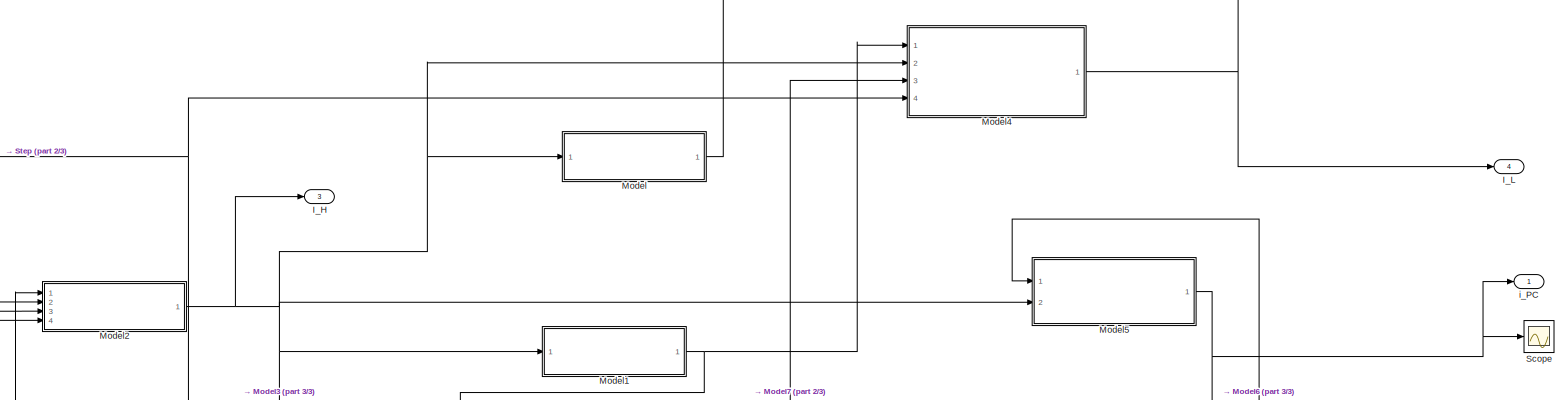
[diagram: root canvas - part 1/3, full width, middle band]
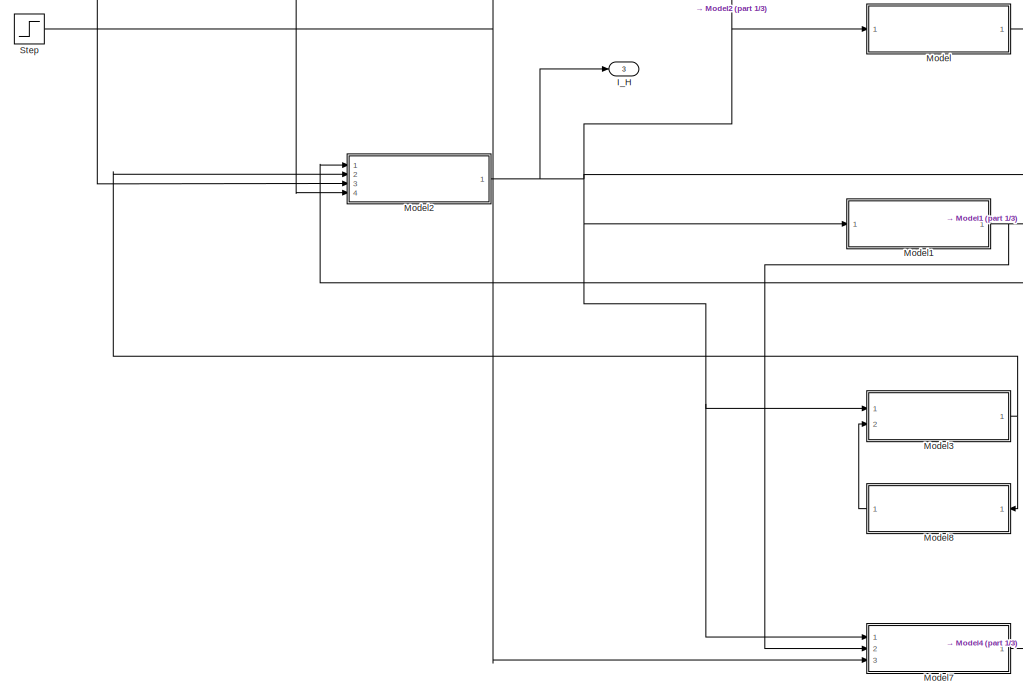
[diagram: root canvas - part 2/3, middle left region]
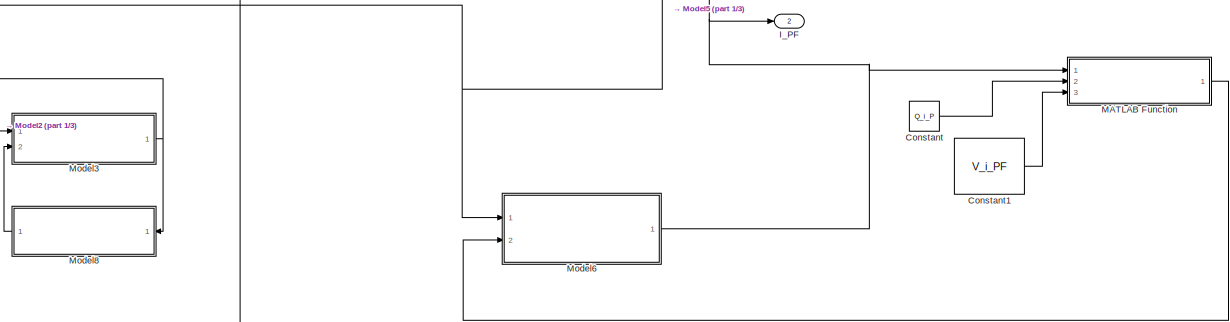
[diagram: root canvas - part 3/3, bottom right region]
MODEL slx_4ff3f8dcc8bc
KIND model
CONFIG AbsTol = auto
CONFIG EnableMultiTasking = off
CONFIG FixedStep = auto
CONFIG MaxStep = auto
CONFIG MinStep = auto
CONFIG RelTol = 1e-3
CONFIG SampleTimeConstraint = Unconstrained
CONFIG Solver = VariableStepAuto
CONFIG SolverName = VariableStepAuto
CONFIG StartTime = 0.0
CONFIG StopTime = 100.0
BLOCK [Constant] Constant
  Value = Q_i_P
BLOCK [Constant] Constant1
  Value = V_i_PF
BLOCK [Outport] I_H
  IconDisplay = Port number
  OutMin = 0
  Port = 3
BLOCK [Outport] I_L
  IconDisplay = Port number
  Port = 4
BLOCK [Outport] I_PF
  IconDisplay = Port number
  OutMin = 0
  Port = 2
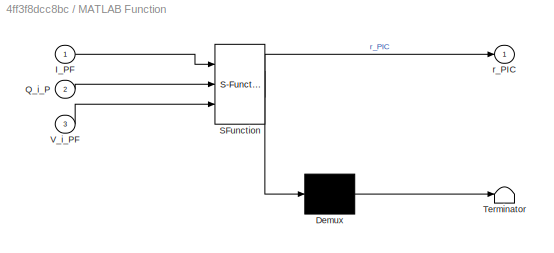
BLOCK [SubSystem] MATLAB Function
  ErrorFcn = Stateflow.Translate.translate
  PermitHierarchicalResolution = ExplicitOnly
  Ports = [3, 1]
  RequestExecContextInheritance = off
  SFBlockType = MATLAB Function
  TreatAsAtomicUnit = on
BLOCK [Demux] MATLAB Function/ Demux 
  Outputs = 1
  Ports = [1, 1]
BLOCK [S-Function] MATLAB Function/ SFunction 
  EnableBusSupport = on
  FunctionName = sf_sfun
  PortCounts = [3 2]
  Ports = [3, 2]
  SFcnIsStateOwnerBlock = off
  SFunctionDeploymentMode = off
  Tag = Stateflow S-Function Insulin_Subsystem 2
BLOCK [Terminator] MATLAB Function/ Terminator 
BLOCK [Inport] MATLAB Function/I_PF
  IconDisplay = Port number
BLOCK [Inport] MATLAB Function/Q_i_P
  IconDisplay = Port number
  Port = 2
BLOCK [Inport] MATLAB Function/V_i_PF
  IconDisplay = Port number
  Port = 3
BLOCK [Outport] MATLAB Function/r_PIC
  IconDisplay = Port number
BLOCK [ModelReference] Model
  ModelNameDialog = Brain_Insulin32
  ModelReferenceVersion = 1.3
  Ports = [1, 1]
BLOCK [ModelReference] Model1
  ModelNameDialog = Gastro_Insulin34
  ModelReferenceVersion = 1.3
  Ports = [1, 1]
BLOCK [ModelReference] Model2
  ModelNameDialog = Heart_Insulin33
  ModelReferenceVersion = 1.6
  Ports = [4, 1]
BLOCK [ModelReference] Model3
  ModelNameDialog = Kidney_Insulin36
  ModelReferenceVersion = 1.6
  Ports = [2, 1]
BLOCK [ModelReference] Model4
  ModelNameDialog = Liver_Insulin35
  ModelReferenceVersion = 1.6
  Ports = [4, 1]
BLOCK [ModelReference] Model5
  ModelNameDialog = PeripheralCap_Insulin37
  ModelReferenceVersion = 1.4
  Ports = [2, 1]
BLOCK [ModelReference] Model6
  ModelNameDialog = PeripheralFluid_Insulin38
  ModelReferenceVersion = 1.4
  Ports = [2, 1]
BLOCK [ModelReference] Model7
  ModelNameDialog = r_LIC
  ModelReferenceVersion = 1.2
  Ports = [3, 1]
BLOCK [ModelReference] Model8
  ModelNameDialog = r_KIC
  ModelReferenceVersion = 1.1
  Ports = [1, 1]
BLOCK [Scope] Scope
  Floating = off
  NumInputPorts = 1
  Ports = [1]
  ScopeSpecificationString = Simulink.scopes.TimeScopeBlockCfg('CurrentConfiguration', extmgr.ConfigurationSet(extmgr.Configuration('Core','General UI',true),extmgr.Configuration('Core','Source UI',true),extmgr.Configuration('Sources','WiredSimulink',true),extmgr.Configuration('Visuals','Time Domain',true,'SerializedDisplays',{struct('MinYLimReal','1.77815','MaxYLimReal','6.35798','YLabelReal','','MinYLimMag','1.77815','MaxYL...<+1380ch>
BLOCK [Step] Step
  SampleTime = 0
BLOCK [Outport] i_PC
  IconDisplay = Port number
  OutMin = 0
LINE Constant1:1 -> MATLAB Function:3
LINE Constant:1 -> MATLAB Function:2
LINE MATLAB Function:1 -> Model6:2
NET Model1:1 -> Model4:1, Model7:2
NET Model2:1 -> I_H:1, Model1:1, Model3:1, Model4:2, Model5:2, Model7:1, Model:1
NET Model3:1 -> Model2:2, Model8:1
NET Model4:1 -> I_L:1, Model2:3
NET Model5:1 -> Model2:1, Model6:1, Scope:1, i_PC:1
NET Model6:1 -> I_PF:1, MATLAB Function:1, Model5:1
LINE Model7:1 -> Model4:3
LINE Model8:1 -> Model3:2
LINE Model:1 -> Model2:4
NET Step:1 -> Model4:4, Model7:3
note: NET lines group one-source signal fan-out (src -> all destinations, sorted); 1:1 wires keep LINE
CHART MATLAB Function states=1 transitions=1
  STATE_LABEL 'eML_blk_kernel()'
  STATE_LABEL 'SCRIPT:\nfunction r_PIC = fcn(I_PF, Q_i_P, V_i_PF)\nr_PIC=I_PF/(((1-0.15)/(0.15*Q_i_P))-(20/V_i_PF));\n\n'
